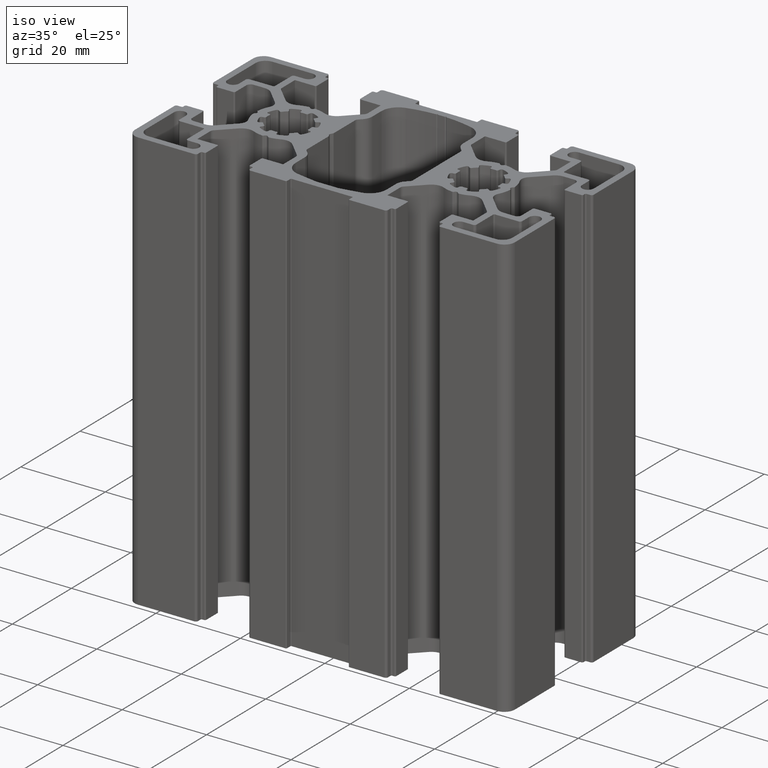
[diagram: clean part render]
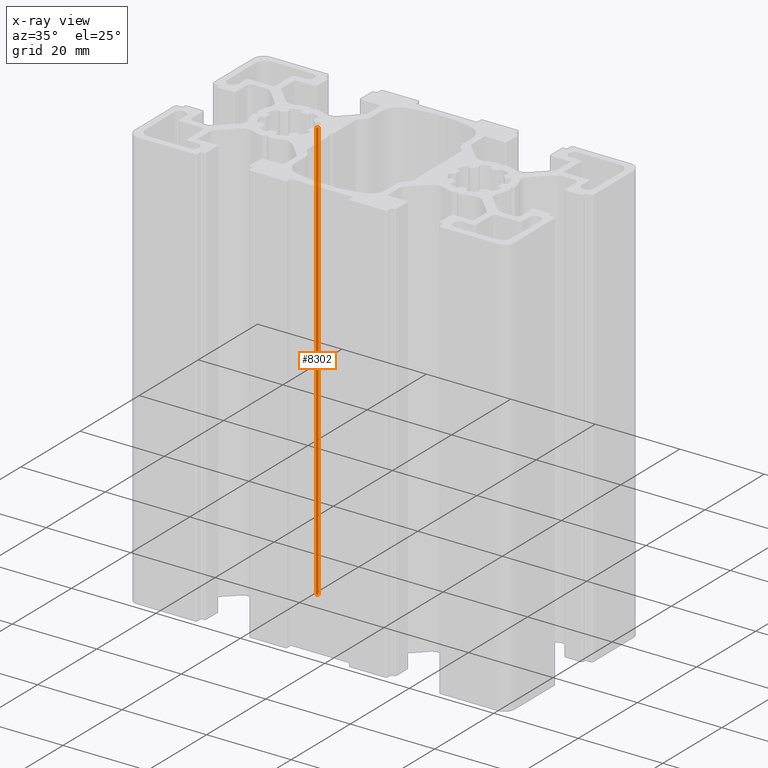
[diagram: x-ray — body ghosted, one internal face saturated and labeled with its STEP entity id]
A machine part, iso view, then the same camera in x-ray: the body is ghosted and one INTERNAL B-rep face — a face not visible from any outside direction — is saturated and labeled: STEP entity #8302.
In plain terms, the highlighted cylindrical surface (edge-blend (fillet) strip) has radius 0.4 mm, axis along (0, 0, 1).
Its self-contained STEP definition (entity closure, byte-faithful):
#485=CIRCLE('',#9183,0.4);
#486=CIRCLE('',#9184,0.4);
#771=CYLINDRICAL_SURFACE('',#9182,0.4);
#1167=FACE_OUTER_BOUND('',#1589,.T.);
#1589=EDGE_LOOP('',(#6718,#6719,#6720,#6721));
#2311=LINE('',#14144,#3057);
#2312=LINE('',#14150,#3058);
#3057=VECTOR('',#11596,100.);
#3058=VECTOR('',#11603,100.);
#3900=VERTEX_POINT('',#14140);
#3901=VERTEX_POINT('',#14142);
#3902=VERTEX_POINT('',#14146);
#3903=VERTEX_POINT('',#14148);
#5099=EDGE_CURVE('',#3901,#3900,#2311,.T.);
#5100=EDGE_CURVE('',#3900,#3902,#485,.T.);
#5101=EDGE_CURVE('',#3903,#3901,#486,.T.);
#5102=EDGE_CURVE('',#3903,#3902,#2312,.T.);
#6718=ORIENTED_EDGE('',*,*,#5100,.F.);
#6719=ORIENTED_EDGE('',*,*,#5099,.F.);
#6720=ORIENTED_EDGE('',*,*,#5101,.F.);
#6721=ORIENTED_EDGE('',*,*,#5102,.T.);
#8302=ADVANCED_FACE('',(#1167),#771,.F.);
#9182=AXIS2_PLACEMENT_3D('',#14145,#11597,#11598);
#9183=AXIS2_PLACEMENT_3D('',#14147,#11599,#11600);
#9184=AXIS2_PLACEMENT_3D('',#14149,#11601,#11602);
#11596=DIRECTION('',(0.,0.,1.));
#11597=DIRECTION('center_axis',(0.,0.,1.));
#11598=DIRECTION('ref_axis',(-0.173657107549448,0.98480617839124,0.));
#11599=DIRECTION('center_axis',(0.,0.,-1.));
#11600=DIRECTION('ref_axis',(-0.173657107549448,0.98480617839124,0.));
#11601=DIRECTION('center_axis',(0.,0.,1.));
#11602=DIRECTION('ref_axis',(-0.173657107549448,0.98480617839124,0.));
#11603=DIRECTION('',(0.,0.,1.));
#14140=CARTESIAN_POINT('',(-16.5323985545353,1.48667509240842,100.));
#14142=CARTESIAN_POINT('',(-16.5323985545353,1.48667509240842,0.));
#14144=CARTESIAN_POINT('',(-16.5323985545353,1.48667509240842,0.));
#14145=CARTESIAN_POINT('Origin',(-16.9205356568749,1.38998181556132,0.));
#14146=CARTESIAN_POINT('',(-16.8510728138551,0.996059344204827,100.));
#14147=CARTESIAN_POINT('Origin',(-16.9205356568749,1.38998181556132,100.));
#14148=CARTESIAN_POINT('',(-16.8510728138551,0.996059344204827,0.));
#14149=CARTESIAN_POINT('Origin',(-16.9205356568749,1.38998181556132,0.));
#14150=CARTESIAN_POINT('',(-16.8510728138551,0.996059344204827,0.));